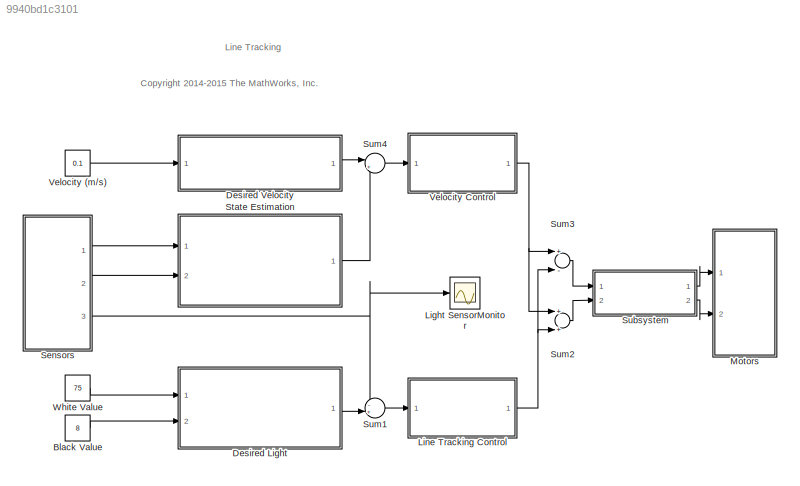
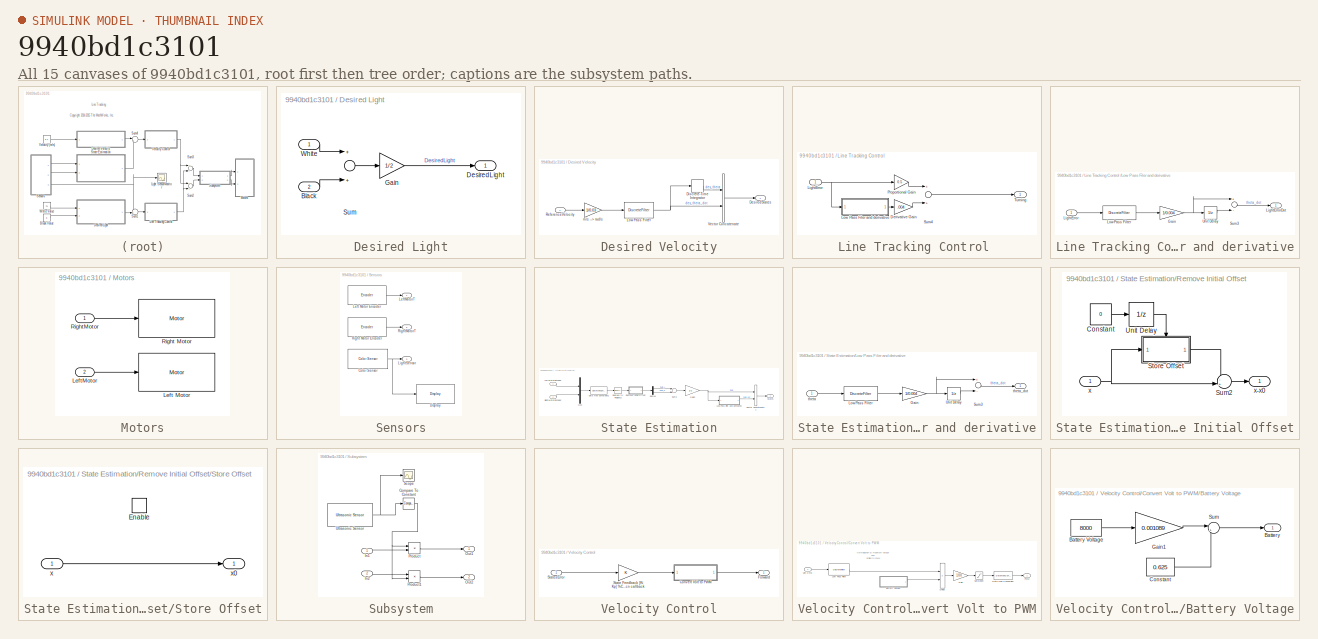
[diagram: thumbnail index - all 15 canvases of the model, root first then tree order]
MODEL slx_9940bd1c3101
KIND model
CONFIG AbsTol = auto
CONFIG EnableMultiTasking = on
CONFIG FixedStep = auto
CONFIG InitFcn = K = [0.4175    0.5498]; %Velocity Control Gains
CONFIG MaxStep = auto
CONFIG MinStep = auto
CONFIG RelTol = 1e-3
CONFIG SampleTimeConstraint = Unconstrained
CONFIG Solver = ode45
CONFIG SolverName = ode45
CONFIG StartTime = 0.0
CONFIG StopTime = 10.0
BLOCK [Constant] Black Value
  Value = 8
BLOCK [SubSystem] Desired Light
  Ports = [2, 1]
  RequestExecContextInheritance = off
  Variant = off
BLOCK [Inport] Desired Light/Black
  IconDisplay = Port number
  Port = 2
BLOCK [Outport] Desired Light/DesiredLight
  IconDisplay = Port number
BLOCK [Gain] Desired Light/Gain
  Gain = 1/2
  OutDataTypeStr = Inherit: Inherit via internal rule
  ParamDataTypeStr = Inherit: Inherit via internal rule
  SaturateOnIntegerOverflow = off
BLOCK [Sum] Desired Light/Sum
  InputSameDT = off
  OutDataTypeStr = Inherit: Inherit via internal rule
  Ports = [2, 1]
  SaturateOnIntegerOverflow = off
BLOCK [Inport] Desired Light/White
  IconDisplay = Port number
BLOCK [SubSystem] Desired Velocity
  Ports = [1, 1]
  RequestExecContextInheritance = off
  Variant = off
BLOCK [Outport] Desired Velocity/DesiredStates
  IconDisplay = Port number
BLOCK [DiscreteIntegrator] Desired Velocity/Discrete-Time Integrator
  ICPrevOutput = DiscIntNeverNeededParam
  ICPrevScaledInput = DiscIntNeverNeededParam
  Ports = [1, 1]
  SampleTime = -1
BLOCK [DiscreteFilter] Desired Velocity/Low Pass Filter
  Denominator = [1 -0.85]
  InputPortMap = u0
  Numerator = [0.15]
  Ports = [1, 1]
BLOCK [Inport] Desired Velocity/ReferenceVelocity
  IconDisplay = Port number
BLOCK [Concatenate] Desired Velocity/Vector Concatenate
  Ports = [2, 1]
BLOCK [Gain] Desired Velocity/m//s --> rad//s
  Gain = 1/0.03
  OutDataTypeStr = Inherit: Inherit via internal rule
  ParamDataTypeStr = Inherit: Inherit via internal rule
  SaturateOnIntegerOverflow = off
BLOCK [Scope] Light SensorMonitor
  NumInputPorts = 1
  Ports = [1]
  ScopeSpecificationString = Simulink.scopes.TimeScopeBlockCfg('CurrentConfiguration', extmgr.ConfigurationSet(extmgr.Configuration('Core','General UI',true),extmgr.Configuration('Core','Source UI',true),extmgr.Configuration('Sources','WiredSimulink',true),extmgr.Configuration('Visuals','Time Domain',true,'SerializedDisplays',{struct('MinYLimReal','0','MaxYLimReal','100','YLabelReal','','MinYLimMag','30.625','MaxYLimMag','84....<+1325ch>
BLOCK [SubSystem] Line Tracking Control 
  Ports = [1, 1]
  RequestExecContextInheritance = off
  Variant = off
BLOCK [Gain] Line Tracking Control /Derivative Gain
  Gain = .004
  OutDataTypeStr = Inherit: Inherit via internal rule
  ParamDataTypeStr = Inherit: Inherit via internal rule
  SaturateOnIntegerOverflow = off
BLOCK [Inport] Line Tracking Control /LightError
  IconDisplay = Port number
BLOCK [SubSystem] Line Tracking Control /Low Pass Filer and derivative
  Ports = [1, 1]
  RequestExecContextInheritance = off
  Variant = off
BLOCK [Gain] Line Tracking Control /Low Pass Filer and derivative/Gain
  Gain = 1/0.004
  OutDataTypeStr = Inherit: Inherit via internal rule
  ParamDataTypeStr = Inherit: Inherit via internal rule
  SaturateOnIntegerOverflow = off
BLOCK [Inport] Line Tracking Control /Low Pass Filer and derivative/LightError
  IconDisplay = Port number
BLOCK [Outport] Line Tracking Control /Low Pass Filer and derivative/LightErrorDot
  IconDisplay = Port number
BLOCK [DiscreteFilter] Line Tracking Control /Low Pass Filer and derivative/Low Pass Filter
  Denominator = [1 -0.8]
  InputPortMap = u0
  Numerator = [.2]
  Ports = [1, 1]
BLOCK [Sum] Line Tracking Control /Low Pass Filer and derivative/Sum3
  InputSameDT = off
  Inputs = +-
  OutDataTypeStr = Inherit: Inherit via internal rule
  Ports = [2, 1]
  SaturateOnIntegerOverflow = off
BLOCK [UnitDelay] Line Tracking Control /Low Pass Filer and derivative/Unit Delay
  InputProcessing = Elements as channels (sample based)
  SampleTime = -1
BLOCK [Gain] Line Tracking Control /Proportional Gain
  Gain = 0.5
  OutDataTypeStr = Inherit: Inherit via internal rule
  ParamDataTypeStr = Inherit: Inherit via internal rule
  SaturateOnIntegerOverflow = off
BLOCK [Sum] Line Tracking Control /Sum4
  InputSameDT = off
  OutDataTypeStr = Inherit: Inherit via internal rule
  Ports = [2, 1]
  SaturateOnIntegerOverflow = off
BLOCK [Outport] Line Tracking Control /Turning
  IconDisplay = Port number
BLOCK [SubSystem] Motors
  Ports = [2]
  RequestExecContextInheritance = off
  Variant = off
BLOCK [Reference] Motors/ Left Motor  REF=legoev3lib/Motor
  Ports = [1]
  SourceBlock = legoev3lib/Motor
  SourceProductBaseCode = LEGOEV3
  SourceProductName = Simulink Support Package for LEGO MINDSTORMS EV3 Hardware
  SourceType = LEGO MINDSTORMS EV3 Motor
BLOCK [Inport] Motors/LeftMotor
  IconDisplay = Port number
  Port = 2
BLOCK [Reference] Motors/Right Motor  REF=legoev3lib/Motor
  Ports = [1]
  SourceBlock = legoev3lib/Motor
  SourceProductBaseCode = LEGOEV3
  SourceProductName = Simulink Support Package for LEGO MINDSTORMS EV3 Hardware
  SourceType = LEGO MINDSTORMS EV3 Motor
BLOCK [Inport] Motors/RightMotor
  IconDisplay = Port number
BLOCK [SubSystem] Sensors
  Ports = [0, 3]
  RequestExecContextInheritance = off
  Variant = off
BLOCK [Reference] Sensors/Color Sensor  REF=legoev3lib/Color Sensor
  Ports = [0, 1]
  SourceBlock = legoev3lib/Color Sensor
  SourceProductBaseCode = LEGOEV3
  SourceProductName = Simulink Support Package for LEGO MINDSTORMS EV3 Hardware
  SourceType = LEGO MINDSTORMS EV3 Color Sensor
BLOCK [Reference] Sensors/Display  REF=legoev3lib/Display
  Ports = [1]
  SourceBlock = legoev3lib/Display
  SourceProductBaseCode = LEGOEV3
  SourceProductName = Simulink Support Package for LEGO MINDSTORMS EV3 Hardware
  SourceType = LEGO MINDSTORMS EV3 Display
BLOCK [Reference] Sensors/Left Motor Encoder  REF=legoev3lib/Encoder
  Ports = [0, 1]
  SourceBlock = legoev3lib/Encoder
  SourceProductBaseCode = LEGOEV3
  SourceProductName = Simulink Support Package for LEGO MINDSTORMS EV3 Hardware
  SourceType = LEGO MINDSTORMS EV3 Encoder
BLOCK [Outport] Sensors/LeftMotorT
  IconDisplay = Port number
BLOCK [Outport] Sensors/LightSensor
  IconDisplay = Port number
  Port = 3
BLOCK [Reference] Sensors/Right Motor Encoder  REF=legoev3lib/Encoder
  Ports = [0, 1]
  SourceBlock = legoev3lib/Encoder
  SourceProductBaseCode = LEGOEV3
  SourceProductName = Simulink Support Package for LEGO MINDSTORMS EV3 Hardware
  SourceType = LEGO MINDSTORMS EV3 Encoder
BLOCK [Outport] Sensors/RightMotorT
  IconDisplay = Port number
  Port = 2
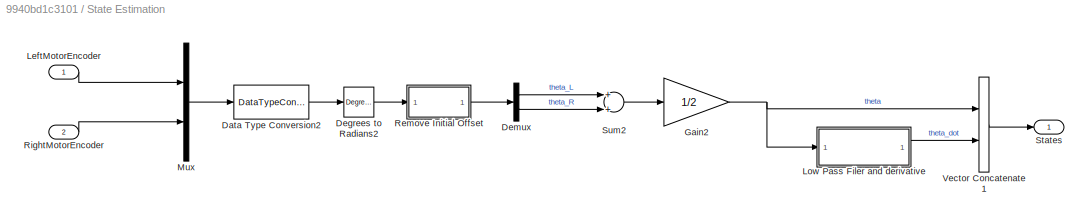
BLOCK [SubSystem] State Estimation
  Ports = [2, 1]
  RequestExecContextInheritance = off
  Variant = off
BLOCK [DataTypeConversion] State Estimation/Data Type Conversion2
  OutDataTypeStr = double
  RndMeth = Floor
  SaturateOnIntegerOverflow = off
BLOCK [Reference] State Estimation/Degrees to Radians2  REF=simulink_extras/Transformations/Degrees to
Radians
  Ports = [1, 1]
  SourceBlock = simulink_extras/Transformations/Degrees to\nRadians
  SourceProductBaseCode = SL
  SourceProductName = Simulink
  SourceType = DegreesToRadians
BLOCK [Demux] State Estimation/Demux
  DisplayOption = bar
  Outputs = 2
  Ports = [1, 2]
BLOCK [Gain] State Estimation/Gain2
  Gain = 1/2
  OutDataTypeStr = Inherit: Inherit via internal rule
  ParamDataTypeStr = Inherit: Inherit via internal rule
  SaturateOnIntegerOverflow = off
BLOCK [Inport] State Estimation/LeftMotorEncoder
  IconDisplay = Port number
BLOCK [SubSystem] State Estimation/Low Pass Filer and derivative
  Ports = [1, 1]
  RequestExecContextInheritance = off
  Variant = off
BLOCK [Gain] State Estimation/Low Pass Filer and derivative/Gain
  Gain = 1/0.004
  OutDataTypeStr = Inherit: Inherit via internal rule
  ParamDataTypeStr = Inherit: Inherit via internal rule
  SaturateOnIntegerOverflow = off
BLOCK [DiscreteFilter] State Estimation/Low Pass Filer and derivative/Low Pass Filter
  Denominator = [1 -0.8]
  InputPortMap = u0
  Numerator = [.2]
  Ports = [1, 1]
BLOCK [Sum] State Estimation/Low Pass Filer and derivative/Sum3
  InputSameDT = off
  Inputs = +-
  OutDataTypeStr = Inherit: Inherit via internal rule
  Ports = [2, 1]
  SaturateOnIntegerOverflow = off
BLOCK [UnitDelay] State Estimation/Low Pass Filer and derivative/Unit Delay
  InputProcessing = Elements as channels (sample based)
  SampleTime = -1
BLOCK [Inport] State Estimation/Low Pass Filer and derivative/theta
  IconDisplay = Port number
BLOCK [Outport] State Estimation/Low Pass Filer and derivative/theta_dot
  IconDisplay = Port number
BLOCK [Mux] State Estimation/Mux
  DisplayOption = bar
  Inputs = 2
  Ports = [2, 1]
BLOCK [SubSystem] State Estimation/Remove Initial Offset
  Ports = [1, 1]
  RequestExecContextInheritance = off
  Variant = off
BLOCK [Constant] State Estimation/Remove Initial Offset/Constant
  OutDataTypeStr = boolean
  Value = 0
BLOCK [SubSystem] State Estimation/Remove Initial Offset/Store Offset
  Ports = [1, 1, 1]
  RequestExecContextInheritance = off
  TreatAsAtomicUnit = on
  Variant = off
BLOCK [EnablePort] State Estimation/Remove Initial Offset/Store Offset/Enable
  Ports = []
BLOCK [Inport] State Estimation/Remove Initial Offset/Store Offset/x
  IconDisplay = Port number
BLOCK [Outport] State Estimation/Remove Initial Offset/Store Offset/x0
  IconDisplay = Port number
  InitialOutput = 0
BLOCK [Sum] State Estimation/Remove Initial Offset/Sum2
  IconShape = round
  InputSameDT = off
  Inputs = -+|
  OutDataTypeStr = Inherit: Inherit via internal rule
  Ports = [2, 1]
  SaturateOnIntegerOverflow = off
BLOCK [UnitDelay] State Estimation/Remove Initial Offset/Unit Delay
  InitialCondition = 1
  InputProcessing = Elements as channels (sample based)
  SampleTime = -1
BLOCK [Inport] State Estimation/Remove Initial Offset/x
  IconDisplay = Port number
BLOCK [Outport] State Estimation/Remove Initial Offset/x-x0
  IconDisplay = Port number
BLOCK [Inport] State Estimation/RightMotorEncoder
  IconDisplay = Port number
  Port = 2
BLOCK [Outport] State Estimation/States
  IconDisplay = Port number
BLOCK [Sum] State Estimation/Sum2
  InputSameDT = off
  OutDataTypeStr = Inherit: Inherit via internal rule
  Ports = [2, 1]
  SaturateOnIntegerOverflow = off
BLOCK [Concatenate] State Estimation/Vector Concatenate1
  Ports = [2, 1]
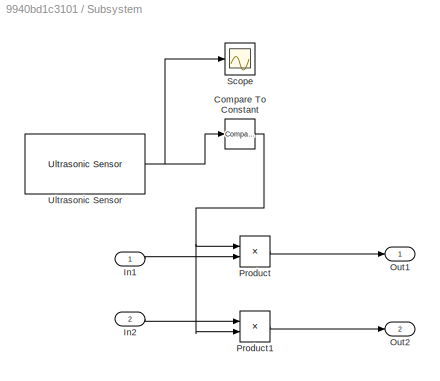
BLOCK [SubSystem] Subsystem
  Ports = [2, 2]
  RequestExecContextInheritance = off
  Variant = off
BLOCK [Reference] Subsystem/Compare To Constant  REF=simulink/Logic and Bit
Operations/Compare
To Constant
  Ports = [1, 1]
  SourceBlock = simulink/Logic and Bit\nOperations/Compare\nTo Constant
  SourceProductBaseCode = SL
  SourceProductName = Simulink
  SourceType = Compare To Constant
BLOCK [Inport] Subsystem/In1
  IconDisplay = Port number
BLOCK [Inport] Subsystem/In2
  IconDisplay = Port number
  Port = 2
BLOCK [Outport] Subsystem/Out1
  IconDisplay = Port number
BLOCK [Outport] Subsystem/Out2
  IconDisplay = Port number
  Port = 2
BLOCK [Product] Subsystem/Product
  InputSameDT = off
  OutDataTypeStr = Inherit: Inherit via internal rule
  Ports = [2, 1]
  RndMeth = Floor
  SaturateOnIntegerOverflow = off
BLOCK [Product] Subsystem/Product1
  InputSameDT = off
  OutDataTypeStr = Inherit: Inherit via internal rule
  Ports = [2, 1]
  RndMeth = Floor
  SaturateOnIntegerOverflow = off
BLOCK [Scope] Subsystem/Scope
  NumInputPorts = 1
  Ports = [1]
  ScopeSpecificationString = Simulink.scopes.TimeScopeBlockCfg('CurrentConfiguration', extmgr.ConfigurationSet(extmgr.Configuration('Core','General UI',true),extmgr.Configuration('Core','Source UI',true),extmgr.Configuration('Sources','WiredSimulink',true,'DataLoggingVariableName','ScopeData1'),extmgr.Configuration('Visuals','Time Domain',true,'SerializedDisplays',{struct('MinYLimReal','-1.00000','MaxYLimReal','1.00000','YLab...<+1371ch>
BLOCK [Reference] Subsystem/Ultrasonic Sensor  REF=legoev3lib/Ultrasonic Sensor
  Ports = [0, 1]
  SourceBlock = legoev3lib/Ultrasonic Sensor
  SourceProductBaseCode = LEGOEV3
  SourceProductName = Simulink Support Package for LEGO MINDSTORMS EV3 Hardware
  SourceType = LEGO MINDSTORMS EV3 Ultrasonic Sensor
BLOCK [Sum] Sum1
  IconShape = round
  InputSameDT = off
  Inputs = -+|
  OutDataTypeStr = Inherit: Inherit via internal rule
  Ports = [2, 1]
  SaturateOnIntegerOverflow = off
BLOCK [Sum] Sum2
  InputSameDT = off
  OutDataTypeStr = Inherit: Inherit via internal rule
  Ports = [2, 1]
  SaturateOnIntegerOverflow = off
BLOCK [Sum] Sum3
  InputSameDT = off
  Inputs = +-
  OutDataTypeStr = Inherit: Inherit via internal rule
  Ports = [2, 1]
  SaturateOnIntegerOverflow = off
BLOCK [Sum] Sum4
  IconShape = round
  InputSameDT = off
  Inputs = |+-
  OutDataTypeStr = Inherit: Inherit via internal rule
  Ports = [2, 1]
  SaturateOnIntegerOverflow = off
BLOCK [Constant] Velocity (m//s)
  Value = 0.1
BLOCK [SubSystem] Velocity Control
  Ports = [1, 1]
  RequestExecContextInheritance = off
  Variant = off
BLOCK [Gain] Velocity Control/ State Feedback [Ki Kp] %Change these values in the model's InitFcn callback
  Gain = K
  Multiplication = Matrix(K*u)
  OutDataTypeStr = Inherit: Inherit via internal rule
  ParamDataTypeStr = Inherit: Inherit via internal rule
  SaturateOnIntegerOverflow = off
BLOCK [SubSystem] Velocity Control/Convert Volt to PWM
  Ports = [1, 1]
  RequestExecContextInheritance = off
  Variant = off
BLOCK [SubSystem] Velocity Control/Convert Volt to PWM/Battery Voltage
  Ports = [0, 1]
  RequestExecContextInheritance = off
  Variant = off
BLOCK [Outport] Velocity Control/Convert Volt to PWM/Battery Voltage/Battery
  IconDisplay = Port number
BLOCK [Constant] Velocity Control/Convert Volt to PWM/Battery Voltage/Battery Voltage
  Value = 8000
BLOCK [Constant] Velocity Control/Convert Volt to PWM/Battery Voltage/Constant
  Value = 0.625
BLOCK [Gain] Velocity Control/Convert Volt to PWM/Battery Voltage/Gain1
  Gain = 0.001089
  OutDataTypeStr = Inherit: Inherit via internal rule
  ParamDataTypeStr = Inherit: Inherit via internal rule
  SaturateOnIntegerOverflow = off
BLOCK [Sum] Velocity Control/Convert Volt to PWM/Battery Voltage/Sum
  IconShape = round
  InputSameDT = off
  Inputs = |+-
  OutDataTypeStr = Inherit: Inherit via internal rule
  Ports = [2, 1]
  SaturateOnIntegerOverflow = off
BLOCK [DataTypeConversion] Velocity Control/Convert Volt to PWM/Data Type Conversion
  OutDataTypeStr = int8
  RndMeth = Floor
  SaturateOnIntegerOverflow = off
BLOCK [Product] Velocity Control/Convert Volt to PWM/Divide
  InputSameDT = off
  Inputs = */
  OutDataTypeStr = Inherit: Inherit via internal rule
  Ports = [2, 1]
  RndMeth = Floor
  SaturateOnIntegerOverflow = off
BLOCK [Gain] Velocity Control/Convert Volt to PWM/Gain
  Gain = 100
  OutDataTypeStr = Inherit: Inherit via internal rule
  ParamDataTypeStr = Inherit: Inherit via internal rule
  SaturateOnIntegerOverflow = off
BLOCK [DiscreteFilter] Velocity Control/Convert Volt to PWM/Low Pass Filter
  Denominator = [1 -0.85]
  InputPortMap = u0
  Numerator = [0.15]
  Ports = [1, 1]
BLOCK [Outport] Velocity Control/Convert Volt to PWM/PWM
  IconDisplay = Port number
BLOCK [Saturate] Velocity Control/Convert Volt to PWM/Saturation
  InputPortMap = u0
  LowerLimit = -100
  Ports = [1, 1]
  UpperLimit = 100
BLOCK [Inport] Velocity Control/Convert Volt to PWM/Volt Cmd
  IconDisplay = Port number
BLOCK [Outport] Velocity Control/Forward
  IconDisplay = Port number
BLOCK [Inport] Velocity Control/StatesError
  IconDisplay = Port number
BLOCK [Constant] White Value
  Value = 75
ANNOTATION (root): <copyright redacted>
ANNOTATION (root): Line Tracking
ANNOTATION Velocity Control/Convert Volt to PWM: Normalization by maximum voltage and Scaling to PWM
LINE Black Value:1 -> Desired Light:2
LINE Desired Light/Black:1 -> Desired Light/Sum:2
LINE Desired Light/Gain:1 -> Desired Light/DesiredLight:1
LINE Desired Light/Sum:1 -> Desired Light/Gain:1
LINE Desired Light/White:1 -> Desired Light/Sum:1
LINE Desired Light:1 -> Sum1:2
LINE Desired Velocity/Discrete-Time Integrator:1 -> Desired Velocity/Vector Concatenate:1
NET Desired Velocity/Low Pass Filter:1 -> Desired Velocity/Discrete-Time Integrator:1, Desired Velocity/Vector Concatenate:2
LINE Desired Velocity/ReferenceVelocity:1 -> Desired Velocity/m//s --> rad//s:1
LINE Desired Velocity/Vector Concatenate:1 -> Desired Velocity/DesiredStates:1
LINE Desired Velocity/m//s --> rad//s:1 -> Desired Velocity/Low Pass Filter:1
LINE Desired Velocity:1 -> Sum4:1
LINE Line Tracking Control /Derivative Gain:1 -> Line Tracking Control /Sum4:2
NET Line Tracking Control /LightError:1 -> Line Tracking Control /Low Pass Filer and derivative:1, Line Tracking Control /Proportional Gain:1
NET Line Tracking Control /Low Pass Filer and derivative/Gain:1 -> Line Tracking Control /Low Pass Filer and derivative/Sum3:1, Line Tracking Control /Low Pass Filer and derivative/Unit Delay:1
LINE Line Tracking Control /Low Pass Filer and derivative/LightError:1 -> Line Tracking Control /Low Pass Filer and derivative/Low Pass Filter:1
LINE Line Tracking Control /Low Pass Filer and derivative/Low Pass Filter:1 -> Line Tracking Control /Low Pass Filer and derivative/Gain:1
LINE Line Tracking Control /Low Pass Filer and derivative/Sum3:1 -> Line Tracking Control /Low Pass Filer and derivative/LightErrorDot:1
LINE Line Tracking Control /Low Pass Filer and derivative/Unit Delay:1 -> Line Tracking Control /Low Pass Filer and derivative/Sum3:2
LINE Line Tracking Control /Low Pass Filer and derivative:1 -> Line Tracking Control /Derivative Gain:1
LINE Line Tracking Control /Proportional Gain:1 -> Line Tracking Control /Sum4:1
LINE Line Tracking Control /Sum4:1 -> Line Tracking Control /Turning:1
NET Line Tracking Control :1 -> Sum2:2, Sum3:2
LINE Motors/LeftMotor:1 -> Motors/ Left Motor:1
LINE Motors/RightMotor:1 -> Motors/Right Motor:1
NET Sensors/Color Sensor:1 -> Sensors/Display:1, Sensors/LightSensor:1
LINE Sensors/Left Motor Encoder:1 -> Sensors/LeftMotorT:1
LINE Sensors/Right Motor Encoder:1 -> Sensors/RightMotorT:1
LINE Sensors:1 -> State Estimation:1
LINE Sensors:2 -> State Estimation:2
NET Sensors:3 -> Light SensorMonitor:1, Sum1:1
LINE State Estimation/Data Type Conversion2:1 -> State Estimation/Degrees to Radians2:1
LINE State Estimation/Degrees to Radians2:1 -> State Estimation/Remove Initial Offset:1
LINE State Estimation/Demux:1 -> State Estimation/Sum2:1
LINE State Estimation/Demux:2 -> State Estimation/Sum2:2
NET State Estimation/Gain2:1 -> State Estimation/Low Pass Filer and derivative:1, State Estimation/Vector Concatenate1:1
LINE State Estimation/LeftMotorEncoder:1 -> State Estimation/Mux:1
NET State Estimation/Low Pass Filer and derivative/Gain:1 -> State Estimation/Low Pass Filer and derivative/Sum3:1, State Estimation/Low Pass Filer and derivative/Unit Delay:1
LINE State Estimation/Low Pass Filer and derivative/Low Pass Filter:1 -> State Estimation/Low Pass Filer and derivative/Gain:1
LINE State Estimation/Low Pass Filer and derivative/Sum3:1 -> State Estimation/Low Pass Filer and derivative/theta_dot:1
LINE State Estimation/Low Pass Filer and derivative/Unit Delay:1 -> State Estimation/Low Pass Filer and derivative/Sum3:2
LINE State Estimation/Low Pass Filer and derivative/theta:1 -> State Estimation/Low Pass Filer and derivative/Low Pass Filter:1
LINE State Estimation/Low Pass Filer and derivative:1 -> State Estimation/Vector Concatenate1:2
LINE State Estimation/Mux:1 -> State Estimation/Data Type Conversion2:1
LINE State Estimation/Remove Initial Offset/Constant:1 -> State Estimation/Remove Initial Offset/Unit Delay:1
LINE State Estimation/Remove Initial Offset/Store Offset/x:1 -> State Estimation/Remove Initial Offset/Store Offset/x0:1
LINE State Estimation/Remove Initial Offset/Store Offset:1 -> State Estimation/Remove Initial Offset/Sum2:1
LINE State Estimation/Remove Initial Offset/Sum2:1 -> State Estimation/Remove Initial Offset/x-x0:1
LINE State Estimation/Remove Initial Offset/Unit Delay:1 -> State Estimation/Remove Initial Offset/Store Offset:enable
NET State Estimation/Remove Initial Offset/x:1 -> State Estimation/Remove Initial Offset/Store Offset:1, State Estimation/Remove Initial Offset/Sum2:2
LINE State Estimation/Remove Initial Offset:1 -> State Estimation/Demux:1
LINE State Estimation/RightMotorEncoder:1 -> State Estimation/Mux:2
LINE State Estimation/Sum2:1 -> State Estimation/Gain2:1
LINE State Estimation/Vector Concatenate1:1 -> State Estimation/States:1
LINE State Estimation:1 -> Sum4:2
NET Subsystem/Compare To Constant:1 -> Subsystem/Product1:2, Subsystem/Product:1
LINE Subsystem/In1:1 -> Subsystem/Product:2
LINE Subsystem/In2:1 -> Subsystem/Product1:1
LINE Subsystem/Product1:1 -> Subsystem/Out2:1
LINE Subsystem/Product:1 -> Subsystem/Out1:1
NET Subsystem/Ultrasonic Sensor:1 -> Subsystem/Compare To Constant:1, Subsystem/Scope:1
LINE Subsystem:1 -> Motors:1
LINE Subsystem:2 -> Motors:2
LINE Sum1:1 -> Line Tracking Control :1
LINE Sum2:1 -> Subsystem:2
LINE Sum3:1 -> Subsystem:1
LINE Sum4:1 -> Velocity Control:1
LINE Velocity (m//s):1 -> Desired Velocity:1
LINE Velocity Control/ State Feedback [Ki Kp] %Change these values in the model's InitFcn callback:1 -> Velocity Control/Convert Volt to PWM:1
LINE Velocity Control/Convert Volt to PWM/Battery Voltage/Battery Voltage:1 -> Velocity Control/Convert Volt to PWM/Battery Voltage/Gain1:1
LINE Velocity Control/Convert Volt to PWM/Battery Voltage/Constant:1 -> Velocity Control/Convert Volt to PWM/Battery Voltage/Sum:2
LINE Velocity Control/Convert Volt to PWM/Battery Voltage/Gain1:1 -> Velocity Control/Convert Volt to PWM/Battery Voltage/Sum:1
LINE Velocity Control/Convert Volt to PWM/Battery Voltage/Sum:1 -> Velocity Control/Convert Volt to PWM/Battery Voltage/Battery:1
LINE Velocity Control/Convert Volt to PWM/Battery Voltage:1 -> Velocity Control/Convert Volt to PWM/Divide:2
LINE Velocity Control/Convert Volt to PWM/Data Type Conversion:1 -> Velocity Control/Convert Volt to PWM/PWM:1
LINE Velocity Control/Convert Volt to PWM/Divide:1 -> Velocity Control/Convert Volt to PWM/Gain:1
LINE Velocity Control/Convert Volt to PWM/Gain:1 -> Velocity Control/Convert Volt to PWM/Saturation:1
LINE Velocity Control/Convert Volt to PWM/Low Pass Filter:1 -> Velocity Control/Convert Volt to PWM/Divide:1
LINE Velocity Control/Convert Volt to PWM/Saturation:1 -> Velocity Control/Convert Volt to PWM/Data Type Conversion:1
LINE Velocity Control/Convert Volt to PWM/Volt Cmd:1 -> Velocity Control/Convert Volt to PWM/Low Pass Filter:1
LINE Velocity Control/Convert Volt to PWM:1 -> Velocity Control/Forward:1
LINE Velocity Control/StatesError:1 -> Velocity Control/ State Feedback [Ki Kp] %Change these values in the model's InitFcn callback:1
NET Velocity Control:1 -> Sum2:1, Sum3:1
LINE White Value:1 -> Desired Light:1
note: NET lines group one-source signal fan-out (src -> all destinations, sorted); 1:1 wires keep LINE
